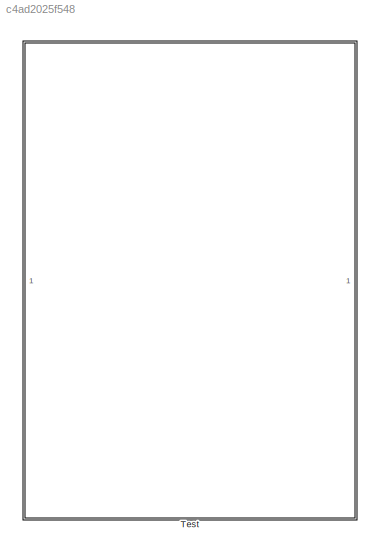
MODEL slx_c4ad2025f548
KIND library
CONFIG AbsTol = auto
CONFIG EnableMultiTasking = off
CONFIG FixedStep = auto
CONFIG MaxStep = auto
CONFIG MinStep = auto
CONFIG RelTol = 1e-3
CONFIG SampleTimeConstraint = Unconstrained
CONFIG SolverName = VariableStepAuto
CONFIG StartTime = 0.0
CONFIG StopTime = 10.0
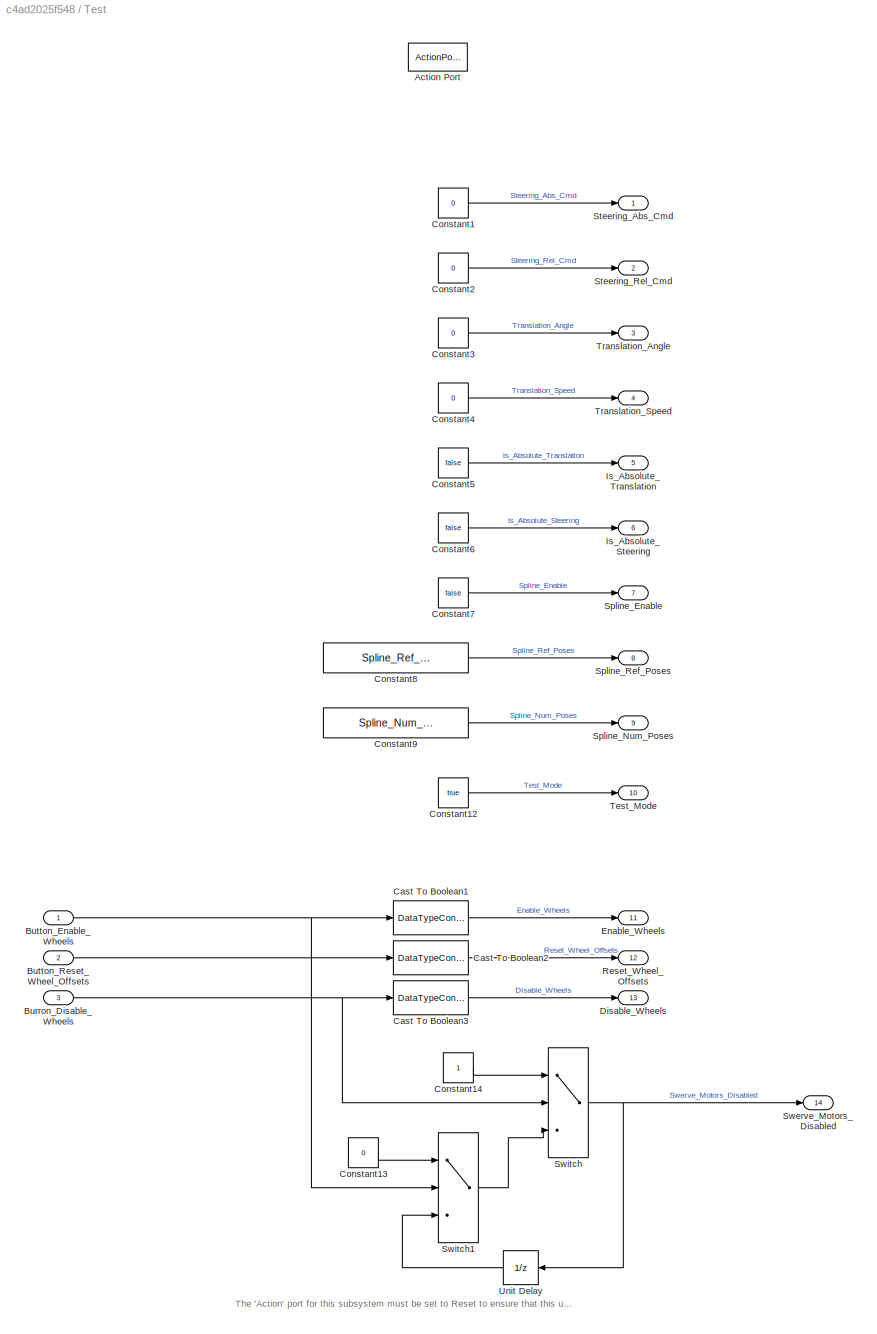
BLOCK [SubSystem] Test
  TreatAsAtomicUnit = on
BLOCK [ActionPort] Test/Action Port
  InitializeStates = reset
BLOCK [Inport] Test/Burron_Disable_Wheels
  Port = 3
BLOCK [Inport] Test/Button_Enable_Wheels
BLOCK [Inport] Test/Button_Reset_Wheel_Offsets
  Port = 2
BLOCK [DataTypeConversion] Test/Cast To Boolean1
  OutDataTypeStr = double
  RndMeth = Floor
  SaturateOnIntegerOverflow = off
BLOCK [DataTypeConversion] Test/Cast To Boolean2
  OutDataTypeStr = double
  RndMeth = Floor
  SaturateOnIntegerOverflow = off
BLOCK [DataTypeConversion] Test/Cast To Boolean3
  OutDataTypeStr = double
  RndMeth = Floor
  SaturateOnIntegerOverflow = off
BLOCK [Constant] Test/Constant1
  Value = 0
BLOCK [Constant] Test/Constant12
  OutDataTypeStr = boolean
  Value = true
BLOCK [Constant] Test/Constant13
  Value = 0
BLOCK [Constant] Test/Constant14
BLOCK [Constant] Test/Constant2
  Value = 0
BLOCK [Constant] Test/Constant3
  Value = 0
BLOCK [Constant] Test/Constant4
  Value = 0
BLOCK [Constant] Test/Constant5
  Value = false
BLOCK [Constant] Test/Constant6
  Value = false
BLOCK [Constant] Test/Constant7
  OutDataTypeStr = boolean
  Value = false
BLOCK [Constant] Test/Constant8
  Value = Spline_Ref_Poses_default
BLOCK [Constant] Test/Constant9
  OutDataTypeStr = double
  Value = Spline_Num_Poses_default
BLOCK [Outport] Test/Disable_Wheels
  Port = 13
BLOCK [Outport] Test/Enable_Wheels
  Port = 11
BLOCK [Outport] Test/Is_Absolute_Steering
  Port = 6
BLOCK [Outport] Test/Is_Absolute_Translation
  Port = 5
BLOCK [Outport] Test/Reset_Wheel_Offsets
  Port = 12
BLOCK [Outport] Test/Spline_Enable
  Port = 7
BLOCK [Outport] Test/Spline_Num_Poses
  Port = 9
BLOCK [Outport] Test/Spline_Ref_Poses
  Port = 8
BLOCK [Outport] Test/Steering_Abs_Cmd
BLOCK [Outport] Test/Steering_Rel_Cmd
  Port = 2
BLOCK [Outport] Test/Swerve_Motors_Disabled
  Port = 14
BLOCK [Switch] Test/Switch
  Criteria = u2 ~= 0
  InputSameDT = off
  SaturateOnIntegerOverflow = off
BLOCK [Switch] Test/Switch1
  Criteria = u2 ~= 0
  InputSameDT = off
  SaturateOnIntegerOverflow = off
BLOCK [Outport] Test/Test_Mode
  Port = 10
BLOCK [Outport] Test/Translation_Angle
  Port = 3
BLOCK [Outport] Test/Translation_Speed
  Port = 4
BLOCK [UnitDelay] Test/Unit Delay
  HasFrameUpgradeWarning = on
  SampleTime = -1
ANNOTATION Test: The 'Action' port for this subsystem must be set to Reset to ensure that this unit delay is set to false as the default output for 'Swerve_Motors_Disabled'.
NET Test/Burron_Disable_Wheels:1 -> Test/Cast To Boolean3:1, Test/Switch:2
NET Test/Button_Enable_Wheels:1 -> Test/Cast To Boolean1:1, Test/Switch1:2
LINE Test/Button_Reset_Wheel_Offsets:1 -> Test/Cast To Boolean2:1
LINE Test/Cast To Boolean1:1 -> Test/Enable_Wheels:1
LINE Test/Cast To Boolean2:1 -> Test/Reset_Wheel_Offsets:1
LINE Test/Cast To Boolean3:1 -> Test/Disable_Wheels:1
LINE Test/Constant12:1 -> Test/Test_Mode:1
LINE Test/Constant13:1 -> Test/Switch1:1
LINE Test/Constant14:1 -> Test/Switch:1
LINE Test/Constant1:1 -> Test/Steering_Abs_Cmd:1
LINE Test/Constant2:1 -> Test/Steering_Rel_Cmd:1
LINE Test/Constant3:1 -> Test/Translation_Angle:1
LINE Test/Constant4:1 -> Test/Translation_Speed:1
LINE Test/Constant5:1 -> Test/Is_Absolute_Translation:1
LINE Test/Constant6:1 -> Test/Is_Absolute_Steering:1
LINE Test/Constant7:1 -> Test/Spline_Enable:1
LINE Test/Constant8:1 -> Test/Spline_Ref_Poses:1
LINE Test/Constant9:1 -> Test/Spline_Num_Poses:1
LINE Test/Switch1:1 -> Test/Switch:3
NET Test/Switch:1 -> Test/Swerve_Motors_Disabled:1, Test/Unit Delay:1
LINE Test/Unit Delay:1 -> Test/Switch1:3
note: NET lines group one-source signal fan-out (src -> all destinations, sorted); 1:1 wires keep LINE
